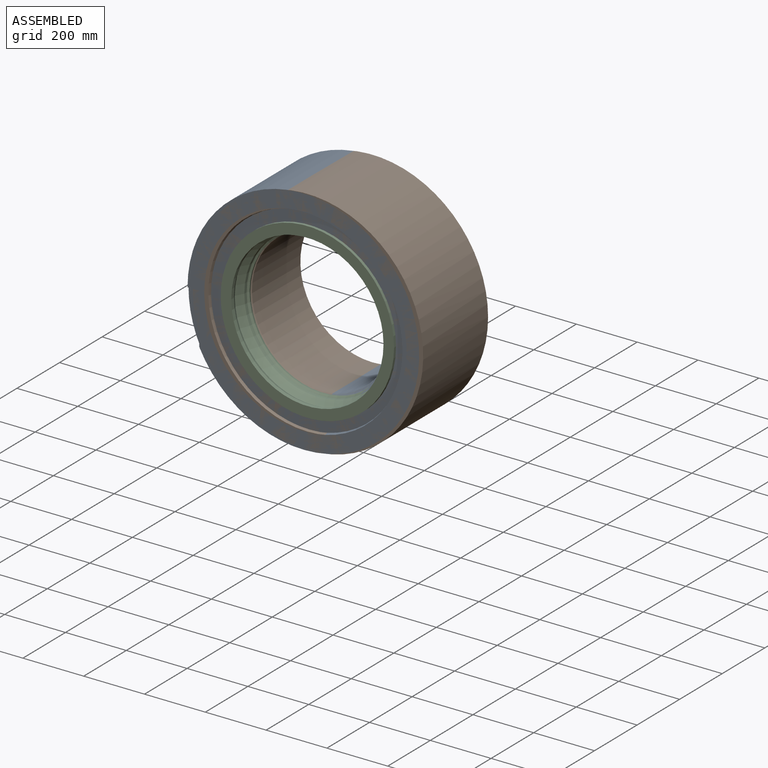
[diagram: assembled view]
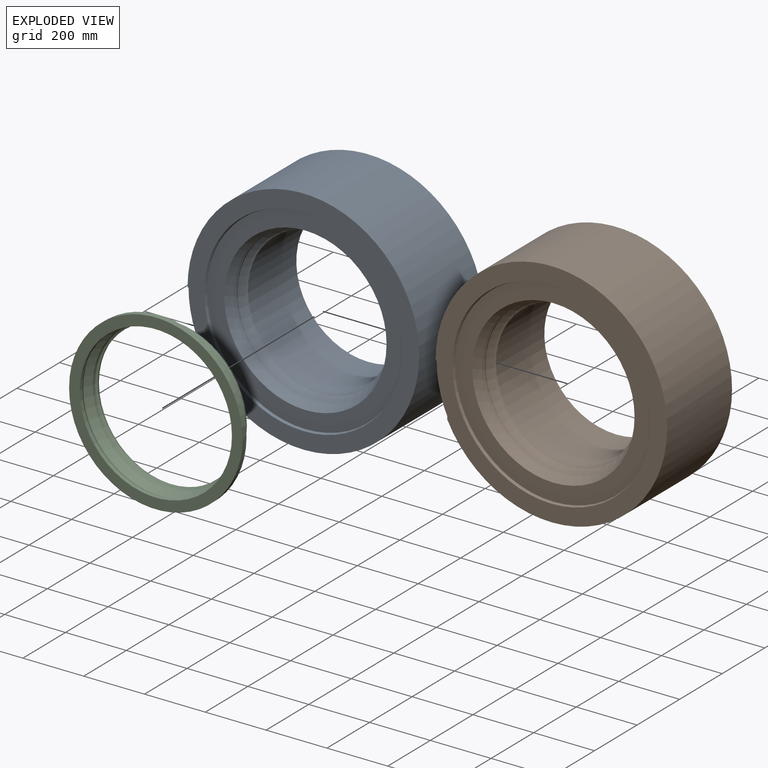
[diagram: exploded view]
GUIDED TOUR — MATED ASSEMBLY (Onshape document 58b7ddafba32631049ae3aa0, AutoMate assembly 58b7ddafba32631049ae3aa0_23465a18578983209ece5cd0_427a15e8c223e6d1c04cb2de_default)

This assembly has 3 components, labeled P0..P2 below (a component is one placed occurrence of a part; the same part can appear more than once), held together by 1 mate. A mate is a constraint between two components; its type names the relative motion it leaves free:
  CYLINDRICAL — leaves both rotation about and translation along the listed axis free.
Axis/direction vectors are unit vectors and 'through' points are millimeter coordinates, both in the assembly's world frame.

MATES
  1. CYLINDRICAL "Cylindrical 1": P2 <-> P0, axis (0.000, -1.000, 0.000) through (90.76, 92.44, 60.06) mm

ASSEMBLY ORDER
  1. P0 — the base component [order heuristic]
  2. P1 [order heuristic]
  3. P2 [order heuristic]
Order-tag legend:
  [order heuristic] — this assembly is geometrically interlocked (no collision-free removal order exists), so components are listed in mate-graph order; insertion feasibility is not verified.

Of the 3 components, 3 carry the full construction recipe — the FeatureScript program that regenerates the part's solid from scratch; the rest are supplied as boundary geometry only.
Each toured component is shown spotlighted twice — in the assembled view, then in the exploded view, where a leader line traces a displaced component back to its assembled socket (saturated green if recipe-attached, orange if geometry-only; every other component desaturated gray) — followed by its recipe or geometry summary and the mates that hold it.
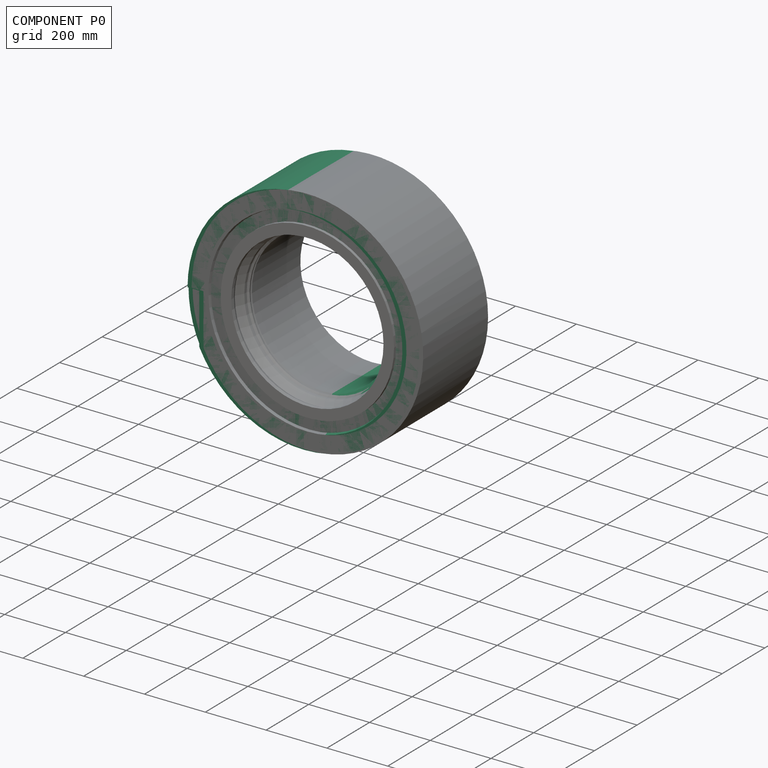
[diagram: component P0 — assembled]
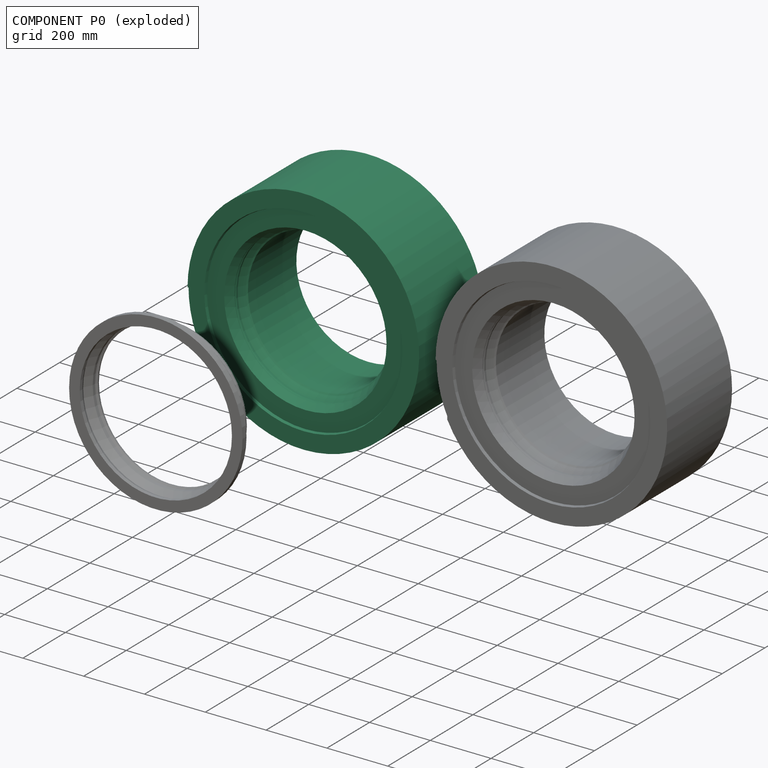
[diagram: component P0 — exploded]
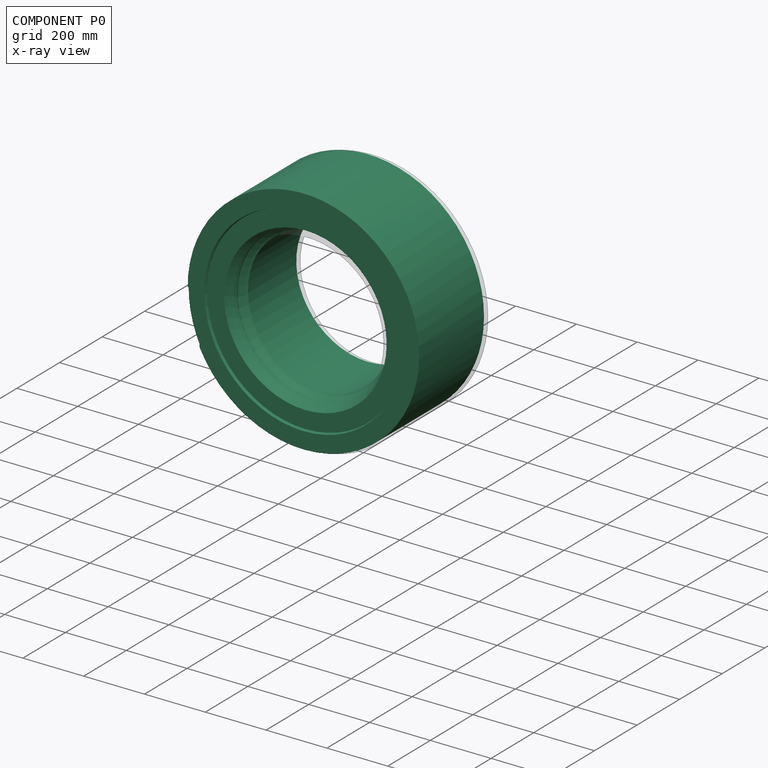
[diagram: component P0 — x-ray view]
COMPONENT P0 — recipe-attached (CADFS 00578305, mesh-verified: the recipe's output STEP matches this component's geometry to below the mesh-comparison resolution (tessellation chordal tolerance ~1.68 mm)).
Held by: CYLINDRICAL mate "Cylindrical 1" to P2.
Construction recipe (FeatureScript — the CAD program that rebuilds this solid; sketch coordinates are in the units given by the * unit suffixes, e.g. mm):

FeatureScript 1511;
import(path : "onshape/std/geometry.fs", version : "1511.0");
import(path : "onshape/std/common.fs", version : "1511.0");
const mm = millimeter;
const VERTEX = EntityType.VERTEX;
const EDGE = EntityType.EDGE;
const FACE = EntityType.FACE;
const BODY = EntityType.BODY;
function v(x, y){return vector(x, y);}
function OD(order){return orderDisambiguation(order);}
function OSD(set){return originalSetDisambiguation(set);}
function TD(topology){return topologyDisambiguation(topology);}
function TDD(query){return trueDependencyDisambiguation(query);}
function sQuery(a, b, c) {return sketchEntityQuery(a, b, c);}

annotation { "Feature Type Name" : "Feature", "Feature Type Description" : "" }
export const myFeature = defineFeature(function(context is Context, id is Id, definition is map)
    precondition{}
    {
        {
            var Q0;
            Q0=qCreatedBy(makeId("Front.planeOp"),FACE);
            var sketch = newSketch(context, id + "F0", { "sketchPlane" : qUnion([Q0])});
            skCircle(sketch, "E0", {"center": v(0, 0) * mm, "radius": 236.54 * mm});
            skCircle(sketch, "E1", {"center": v(0, 0) * mm, "radius": 380.94 * mm});
            skSolve(sketch);
        }
        {
            var Q0;
            Q0=qSketchRegion(id+"F0",true);
            extrude(context, id + "F1", {"entities" : qUnion([Q0]), "oppositeDirection" : true, "depth" : 304.8 * mm, "offsetDistance" : 25.4 * mm});
        }
        {
            var Q0;
            Q0=qCreatedBy(makeId("Right.planeOp"),FACE);
            var sketch = newSketch(context, id + "F2", { "sketchPlane" : qUnion([Q0])});
            skLineSegment(sketch, "E2", {"start": v(0, 0) * mm, "end": v(-223.81, 0) * mm});
            skPoint(sketch, "E3", {"position": v(0, 325.9) * mm});
            skLineSegment(sketch, "E4", {"start": v(9.52, 323.44) * mm, "end": v(9.53, 0) * mm});
            skLineSegment(sketch, "E5", {"start": v(0, 325.9) * mm, "end": v(9.53, 323.44) * mm});
            skLineSegment(sketch, "E6", {"start": v(0, 0) * mm, "end": v(9.53, 0) * mm});
            skLineSegment(sketch, "E7", {"start": v(0, 325.9) * mm, "end": v(-38.14, 325.9) * mm});
            skLineSegment(sketch, "E8", {"start": v(-38.14, 325.9) * mm, "end": v(0, -5.87) * mm});
            skSolve(sketch);
        }
        {
            var Q0;
            Q0=qSketchRegion(id+"F2",true);
            var Q1;
            Q1=sQuery(id+"F2.wireOp",EDGE,"E2");
            revolve(context, id + "F3", {"operationType" : NewBodyOperationType.REMOVE, "entities" : qUnion([Q0]), "axis" : qUnion([Q1]), "revolveType" : RevolveType.FULL, "oppositeDirection" : true});
        }
        {
            var Q0;
            Q0=qCreatedBy(makeId("Right.planeOp"),FACE);
            var sketch = newSketch(context, id + "F4", { "sketchPlane" : qUnion([Q0])});
            skPoint(sketch, "E9", {"position": v(9.52, 267) * mm});
            skLineSegment(sketch, "E10", {"start": v(9.52, 267) * mm, "end": v(39.3, 254.36) * mm});
            skLineSegment(sketch, "E11", {"start": v(41.25, 254.36) * mm, "end": v(39.3, 254.36) * mm});
            skLineSegment(sketch, "E12", {"start": v(41.25, 254.36) * mm, "end": v(45.44, 252.58) * mm});
            skLineSegment(sketch, "E13", {"start": v(45.44, 252.58) * mm, "end": v(52.7, 252.58) * mm});
            skLineSegment(sketch, "E14", {"start": v(52.7, 252.58) * mm, "end": v(72.8, 240.98) * mm});
            skLineSegment(sketch, "E15", {"start": v(72.8, 240.98) * mm, "end": v(83.79, 229.98) * mm});
            skLineSegment(sketch, "E16", {"start": v(9.52, 267) * mm, "end": v(-83.95, 267) * mm});
            skLineSegment(sketch, "E17", {"start": v(-83.95, 267) * mm, "end": v(-48.08, 188) * mm});
            skLineSegment(sketch, "E18", {"start": v(-48.08, 188) * mm, "end": v(83.79, 229.98) * mm});
            skSolve(sketch);
        }
        {
            var Q0;
            Q0=qSketchRegion(id+"F4",true);
            var Q1;
            Q1=makeQuery(id+"F1.opExtrude","SWEPT_FACE",FACE,{"disambiguationData":[OSD([sQuery(id+"F0.wireOp",EDGE,"E0")])]});
            revolve(context, id + "F5", {"operationType" : NewBodyOperationType.REMOVE, "entities" : qUnion([Q0]), "axis" : qUnion([Q1]), "revolveType" : RevolveType.FULL, "oppositeDirection" : true});
        }
        {
            var Q0;
            Q0=qCreatedBy(makeId("Top.planeOp"),FACE);
            var sketch = newSketch(context, id + "F6", { "sketchPlane" : qUnion([Q0])});
            skLineSegment(sketch, "E19.bottom", {"start": v(-395.47, -13.39) * mm, "end": v(-342.23, -13.39) * mm});
            skLineSegment(sketch, "E19.top", {"start": v(-395.47, 4.5) * mm, "end": v(-342.23, 4.5) * mm});
            skLineSegment(sketch, "E19.left", {"start": v(-395.47, -13.39) * mm, "end": v(-395.47, 4.5) * mm});
            skLineSegment(sketch, "E19.right", {"start": v(-342.23, -13.39) * mm, "end": v(-342.23, 4.5) * mm});
            skSolve(sketch);
        }
        {
            var Q0;
            Q0=qSketchRegion(id+"F6",true);
            extrude(context, id + "F7", {"entities" : qUnion([Q0]), "operationType" : NewBodyOperationType.REMOVE, "oppositeDirection" : true, "depth" : 231.14 * mm, "offsetDistance" : 25.4 * mm});
        }
    });
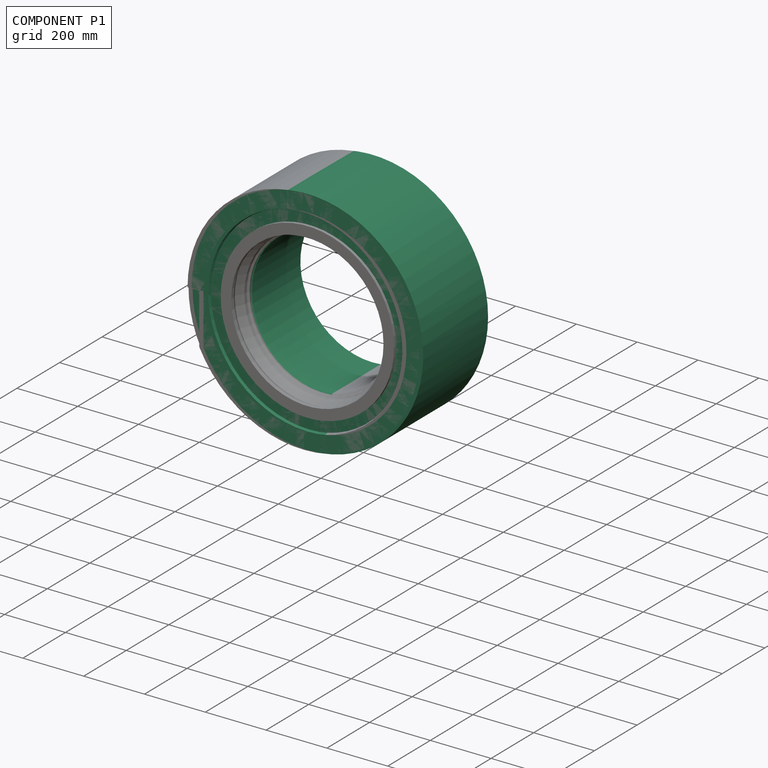
[diagram: component P1 — assembled]
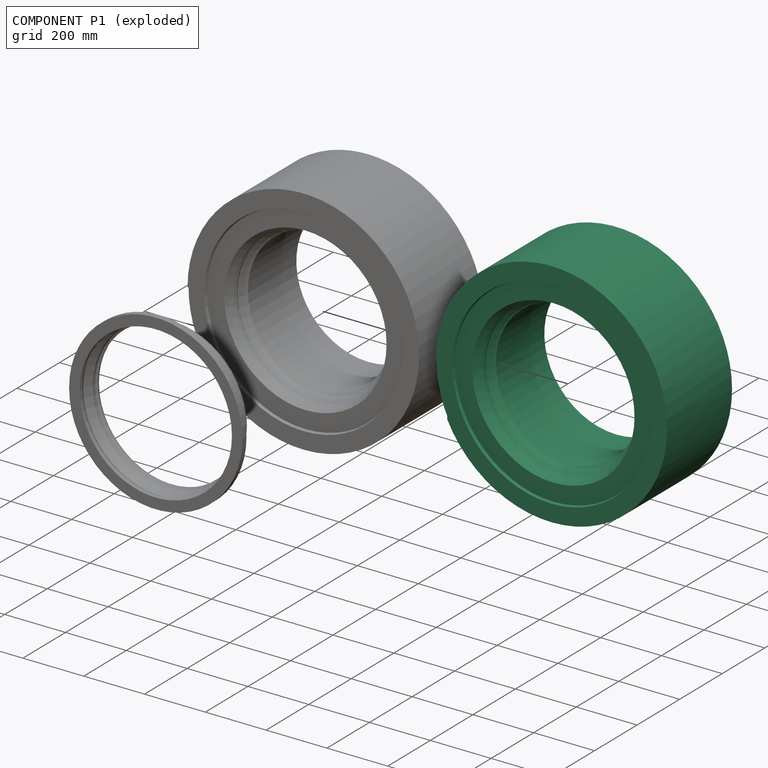
[diagram: component P1 — exploded]
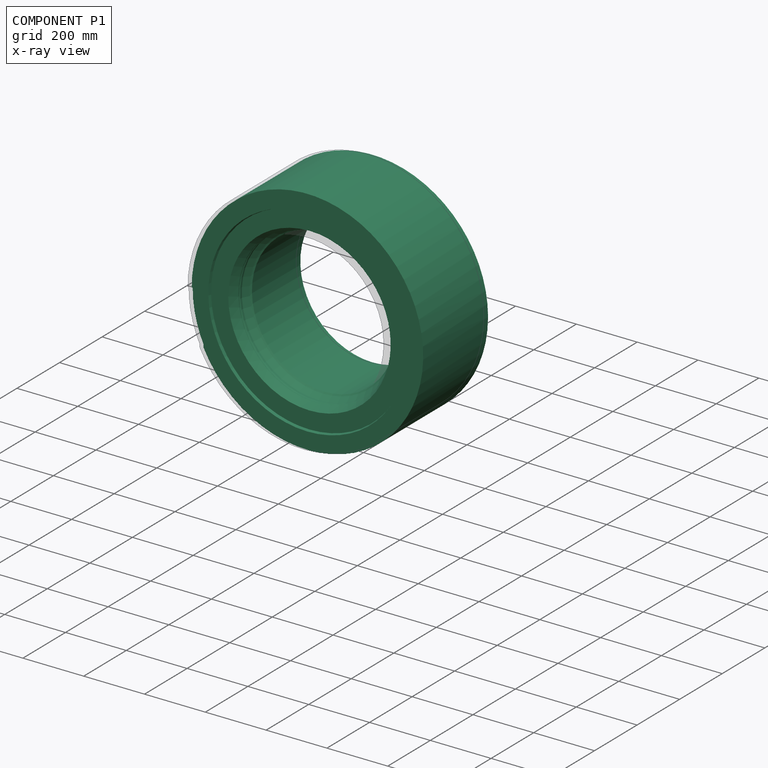
[diagram: component P1 — x-ray view]
COMPONENT P1 — same part as P0 (CADFS 00578305); its construction recipe is shown at P0.
Held by: no mates (free).
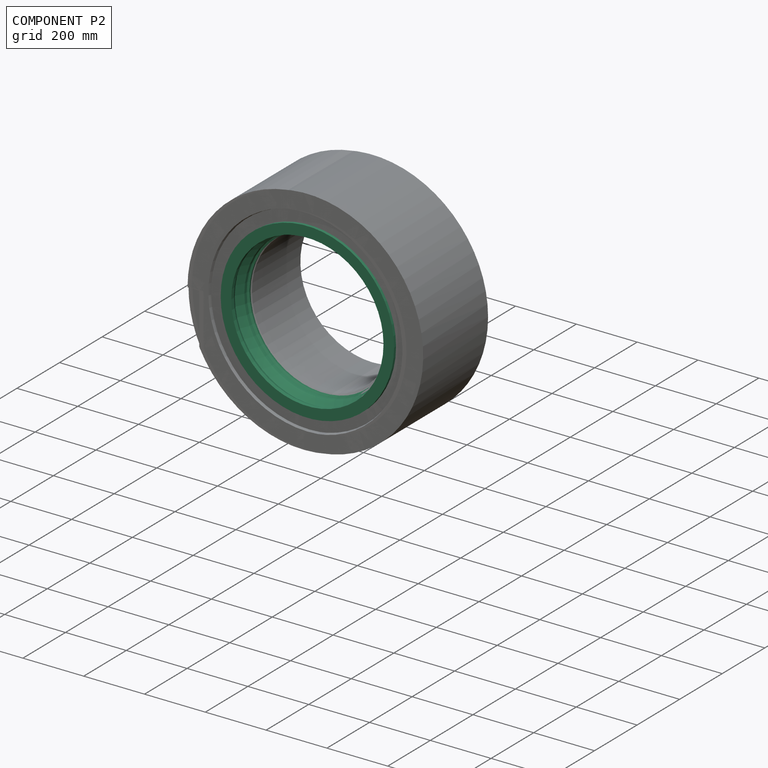
[diagram: component P2 — assembled]
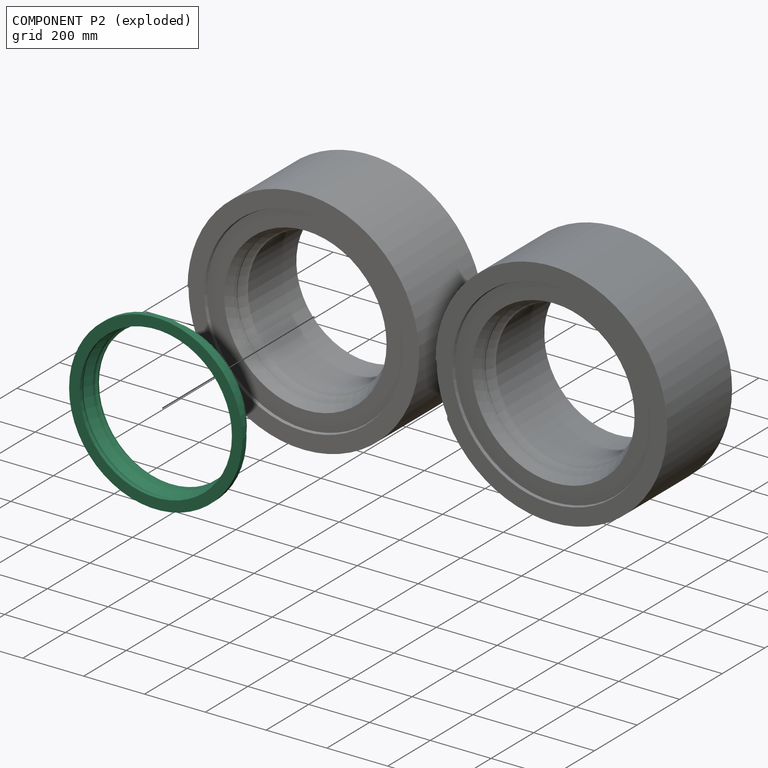
[diagram: component P2 — exploded]
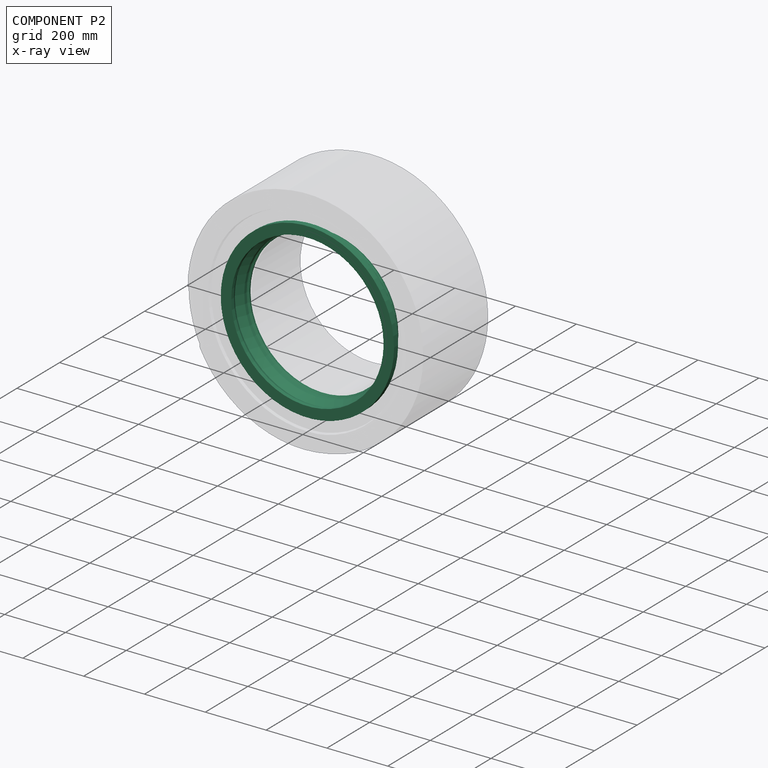
[diagram: component P2 — x-ray view]
COMPONENT P2 — recipe-attached (CADFS 00578306, mesh-verified: the recipe's output STEP matches this component's geometry to below the mesh-comparison resolution (tessellation chordal tolerance ~1.21 mm)).
Held by: CYLINDRICAL mate "Cylindrical 1" to P0.
Construction recipe (FeatureScript — the CAD program that rebuilds this solid; sketch coordinates are in the units given by the * unit suffixes, e.g. mm):

FeatureScript 1511;
import(path : "onshape/std/geometry.fs", version : "1511.0");
import(path : "onshape/std/common.fs", version : "1511.0");
const mm = millimeter;
const VERTEX = EntityType.VERTEX;
const EDGE = EntityType.EDGE;
const FACE = EntityType.FACE;
const BODY = EntityType.BODY;
function v(x, y){return vector(x, y);}
function OD(order){return orderDisambiguation(order);}
function OSD(set){return originalSetDisambiguation(set);}
function TD(topology){return topologyDisambiguation(topology);}
function TDD(query){return trueDependencyDisambiguation(query);}
function sQuery(a, b, c) {return sketchEntityQuery(a, b, c);}

annotation { "Feature Type Name" : "Feature", "Feature Type Description" : "" }
export const myFeature = defineFeature(function(context is Context, id is Id, definition is map)
    precondition{}
    {
        {
            var Q0;
            Q0=qCreatedBy(makeId("Front.planeOp"),FACE);
            var sketch = newSketch(context, id + "F0", { "sketchPlane" : qUnion([Q0])});
            skLineSegment(sketch, "E0", {"start": v(0, 0) * mm, "end": v(30.12, 0) * mm});
            skPoint(sketch, "E1", {"position": v(-7.36, 231.93) * mm});
            skLineSegment(sketch, "E2", {"start": v(-7.36, 237.1) * mm, "end": v(0, 239.08) * mm});
            skLineSegment(sketch, "E3.trimOffspring", {"start": v(0, 239.08) * mm, "end": v(0, 245.2) * mm});
            skLineSegment(sketch, "E4", {"start": v(-7.36, 237.1) * mm, "end": v(-12.82, 242.57) * mm});
            skLineSegment(sketch, "E5", {"start": v(-16.97, 252.22) * mm, "end": v(-8.98, 252.22) * mm});
            skLineSegment(sketch, "E6", {"start": v(-97.44, 148.32) * mm, "end": v(22.45, 148.32) * mm});
            skLineSegment(sketch, "E7", {"start": v(-97.44, 193.92) * mm, "end": v(-97.44, 70.08) * mm});
            skPoint(sketch, "E8", {"position": v(-66.59, 139.32) * mm});
            skArc(sketch, "E9", {"start": v(0, 247.47) * mm, "mid": v(-3.92, 249.79) * mm, "end": v(-7.93, 251.96) * mm});
            skLineSegment(sketch, "E10", {"start": v(0, 0) * mm, "end": v(0, 148.32) * mm});
            skArc(sketch, "E11.trimOffspring", {"start": v(-43.28, 263.2) * mm, "mid": v(-47.44, 265.06) * mm, "end": v(-51.66, 266.78) * mm});
            skLineSegment(sketch, "E12", {"start": v(-43.28, 263.2) * mm, "end": v(-40.28, 261.92) * mm});
            skLineSegment(sketch, "E13", {"start": v(-40.28, 261.92) * mm, "end": v(-41.77, 258.41) * mm});
            skLineSegment(sketch, "E14", {"start": v(-41.77, 258.41) * mm, "end": v(-31.25, 253.95) * mm});
            skLineSegment(sketch, "E15", {"start": v(-31.25, 253.95) * mm, "end": v(-29.76, 257.46) * mm});
            skLineSegment(sketch, "E16.trimOffspring", {"start": v(-29.76, 257.46) * mm, "end": v(-17.86, 252.4) * mm});
            skLineSegment(sketch, "E17.trimOffspring", {"start": v(0, 240.83) * mm, "end": v(0, 246.18) * mm});
            skLineSegment(sketch, "E18", {"start": v(-51.66, 266.78) * mm, "end": v(-52.3, 266.15) * mm});
            skLineSegment(sketch, "E19", {"start": v(-54.33, 266.06) * mm, "end": v(-52.5, 266.06) * mm});
            skLineSegment(sketch, "E20", {"start": v(-54.61, 284.8) * mm, "end": v(-54.61, 266.35) * mm});
            skLineSegment(sketch, "E21", {"start": v(-24.13, 242.57) * mm, "end": v(-13.94, 242.57) * mm});
            skPoint(sketch, "E22", {"position": v(-24.13, 242.57) * mm});
            skLineSegment(sketch, "E23", {"start": v(-13.94, 242.57) * mm, "end": v(-12.82, 242.57) * mm});
            skLineSegment(sketch, "E24", {"start": v(-24.13, 242.57) * mm, "end": v(-50.68, 255.32) * mm});
            skLineSegment(sketch, "E25", {"start": v(-50.68, 255.32) * mm, "end": v(-61.45, 250.42) * mm});
            skLineSegment(sketch, "E26", {"start": v(-61.45, 250.42) * mm, "end": v(-74.18, 250.42) * mm});
            skLineSegment(sketch, "E27", {"start": v(-74.18, 250.42) * mm, "end": v(-74.18, 285.19) * mm});
            skLineSegment(sketch, "E28", {"start": v(-74.18, 285.19) * mm, "end": v(-54.61, 284.8) * mm});
            skPoint(sketch, "E29.visualSharp", {"position": v(0, 247.47) * mm});
            skPoint(sketch, "E30.visualSharp", {"position": v(0, 239.08) * mm});
            skPoint(sketch, "E31.visualSharp", {"position": v(-8.43, 252.22) * mm});
            skArc(sketch, "E31.filletArc", {"start": v(-7.93, 251.96) * mm, "mid": v(-8.44, 252.16) * mm, "end": v(-8.98, 252.22) * mm});
            skPoint(sketch, "E32.visualSharp", {"position": v(-17.43, 252.22) * mm});
            skArc(sketch, "E32.filletArc", {"start": v(-17.86, 252.4) * mm, "mid": v(-17.42, 252.27) * mm, "end": v(-16.97, 252.22) * mm});
            skPoint(sketch, "E33.visualSharp", {"position": v(-51.66, 266.78) * mm});
            skPoint(sketch, "E34.visualSharp", {"position": v(-52.38, 266.06) * mm});
            skArc(sketch, "E34.filletArc", {"start": v(-52.5, 266.06) * mm, "mid": v(-52.4, 266.09) * mm, "end": v(-52.3, 266.15) * mm});
            skPoint(sketch, "E35.visualSharp", {"position": v(-54.61, 266.06) * mm});
            skArc(sketch, "E35.filletArc", {"start": v(-54.61, 266.35) * mm, "mid": v(-54.53, 266.15) * mm, "end": v(-54.33, 266.06) * mm});
            skPoint(sketch, "E36.visualSharp", {"position": v(-7.36, 237.1) * mm});
            skLineSegment(sketch, "E37", {"start": v(0, 246.18) * mm, "end": v(0, 247.47) * mm});
            skSolve(sketch);
        }
        {
            var Q0;
            Q0=qSketchRegion(id+"F0",true);
            var Q1;
            Q1=sQuery(id+"F0.wireOp",EDGE,"E0");
            revolve(context, id + "F1", {"entities" : qUnion([Q0]), "axis" : qUnion([Q1]), "revolveType" : RevolveType.FULL});
        }
    });
PROVENANCE & LICENSES
Assembly (occurrences, transforms, mates, per-part STEP geometry): AutoMate dataset, Zenodo record 7776208, CC0.
Construction recipes: CADFS (HuggingFace VladPyatov/CADFS, CC-BY-4.0, layered over the ABC dataset), FeatureScript reconstruction programs keyed by ABC model id.
Join: ABC meta listings map ABC model id -> Onshape documentId; within a shared document, parts are matched by geometric signature (bounding-box dims + volume at 0.1% relative tolerance, exact B-rep face/solid counts).
Verification: 3 of this assembly's 3 components carry a recipe attachment, and every attachment is mesh-verified: the CADFS STEP and the AutoMate member STEP were compared as meshes in their shared local frame (symmetric sampled-point-to-mesh distance); worst across the 3 attachments: below the mesh-comparison resolution (tessellation chordal tolerance ~1.68 mm) on a 1120 mm part.
Renders: orthographic iso camera (az 35 / el 25); the floor grid conveys scale (grid pitch printed in each image; no ruler). In the exploded view each component is displaced by its stored offset vector: the offsets alone carry the explosion direction (mate normal/axis signs are not orientation cues and do not encode it), and separation distances are assigned per mate-chain, not proportionally to assembly-order depth.
